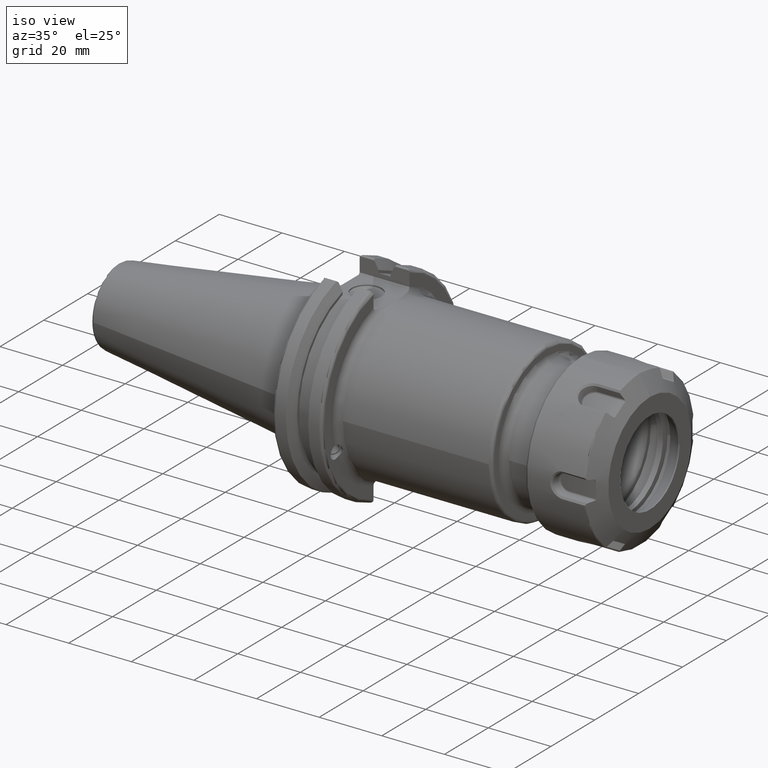
[diagram: clean part render]
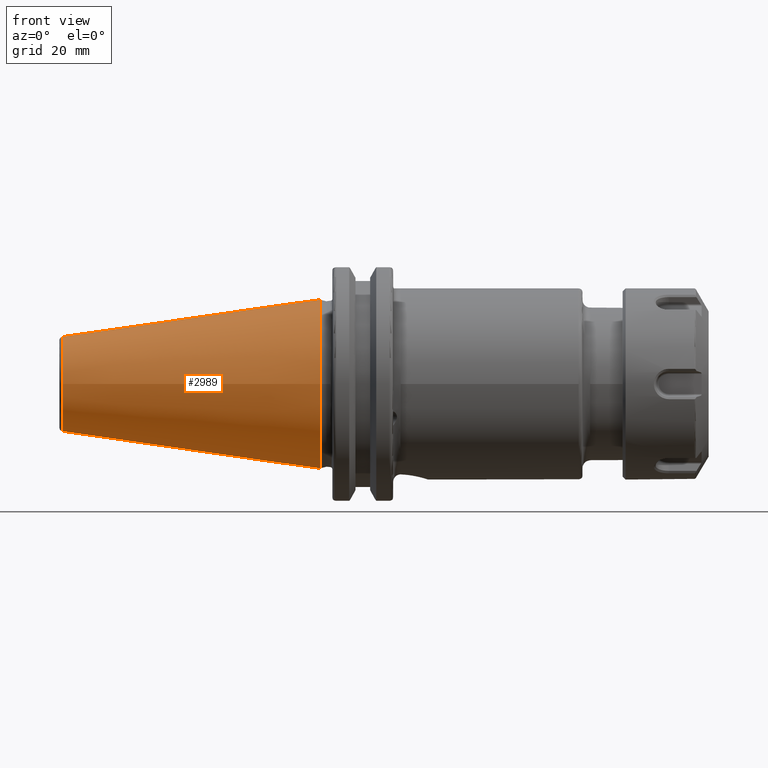
[diagram: tour spotlight — one face highlighted and labeled with its STEP entity id]
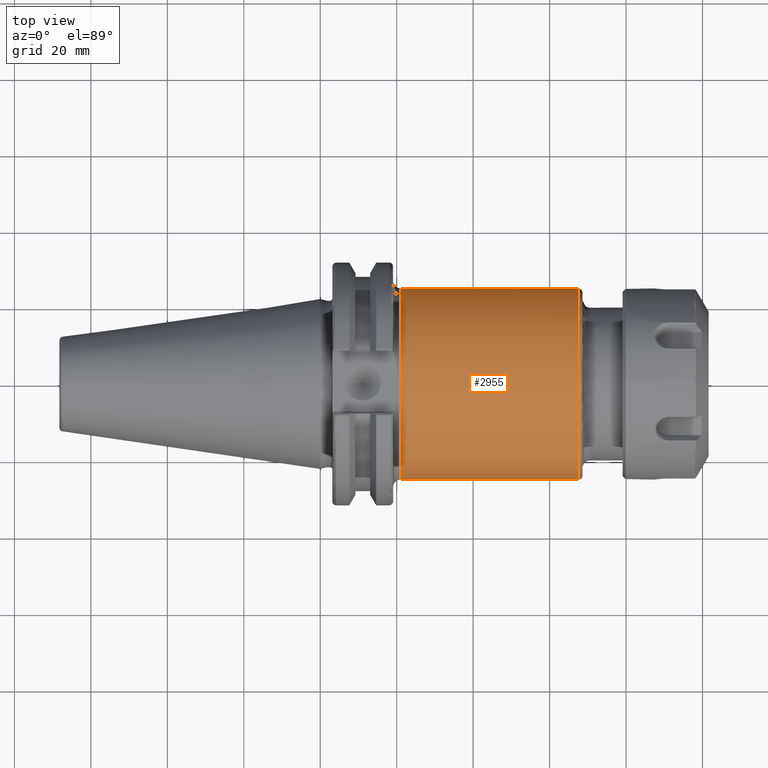
[diagram: tour spotlight — one face highlighted and labeled with its STEP entity id]
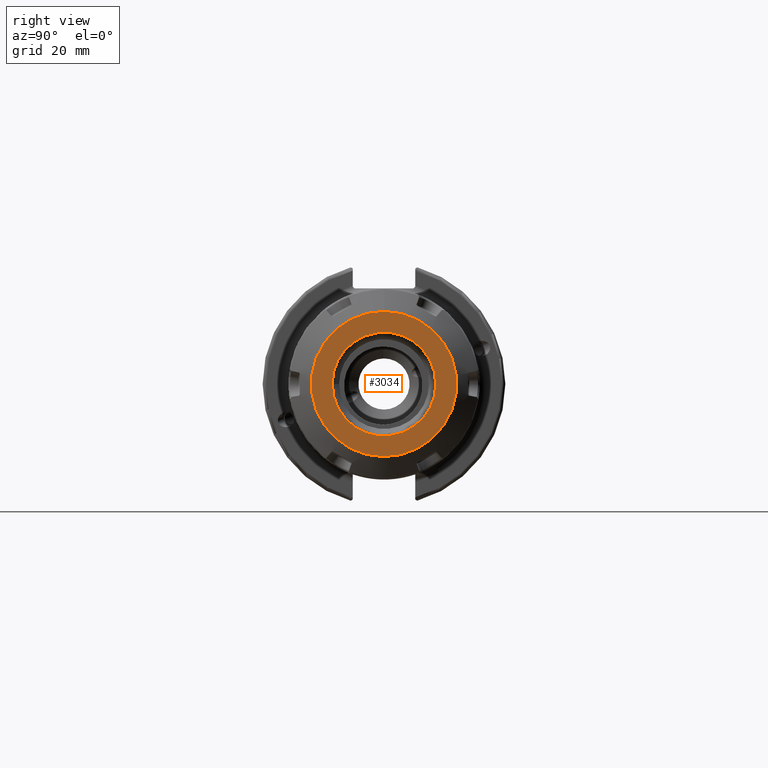
[diagram: tour spotlight — one face highlighted and labeled with its STEP entity id]
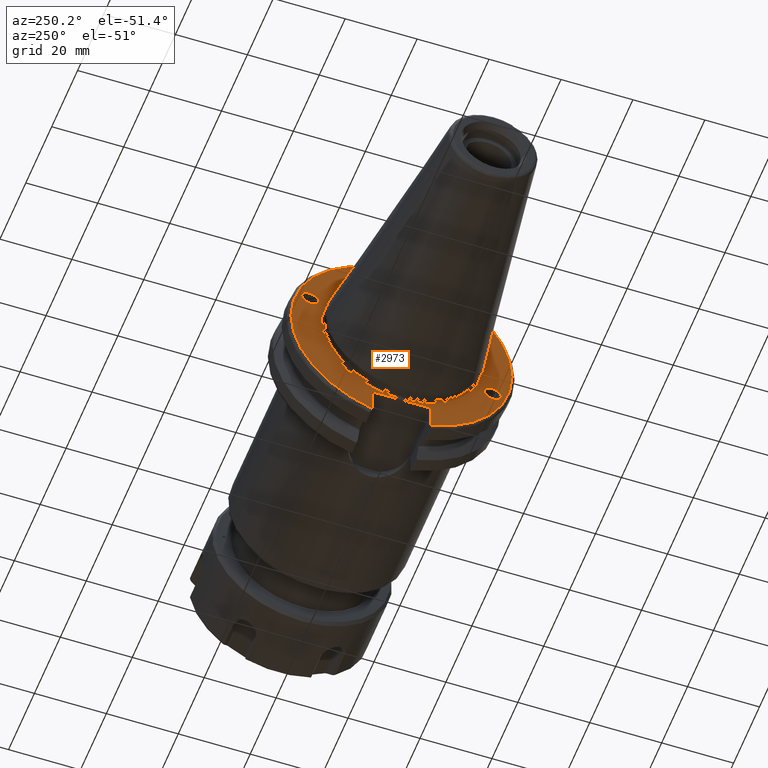
[diagram: tour spotlight — one face highlighted and labeled with its STEP entity id]
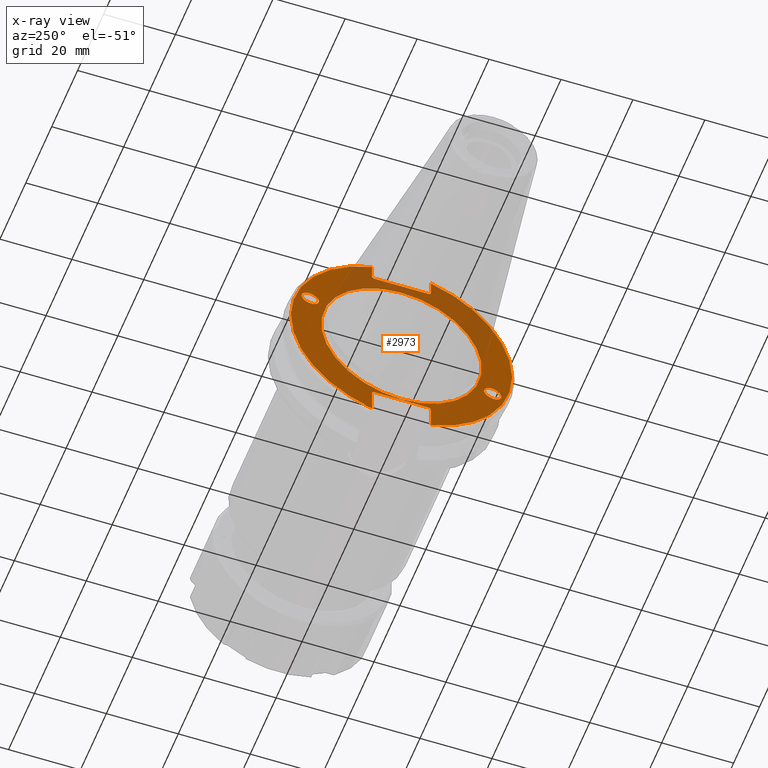
[diagram: x-ray of the same camera — body ghosted, this tour face saturated]
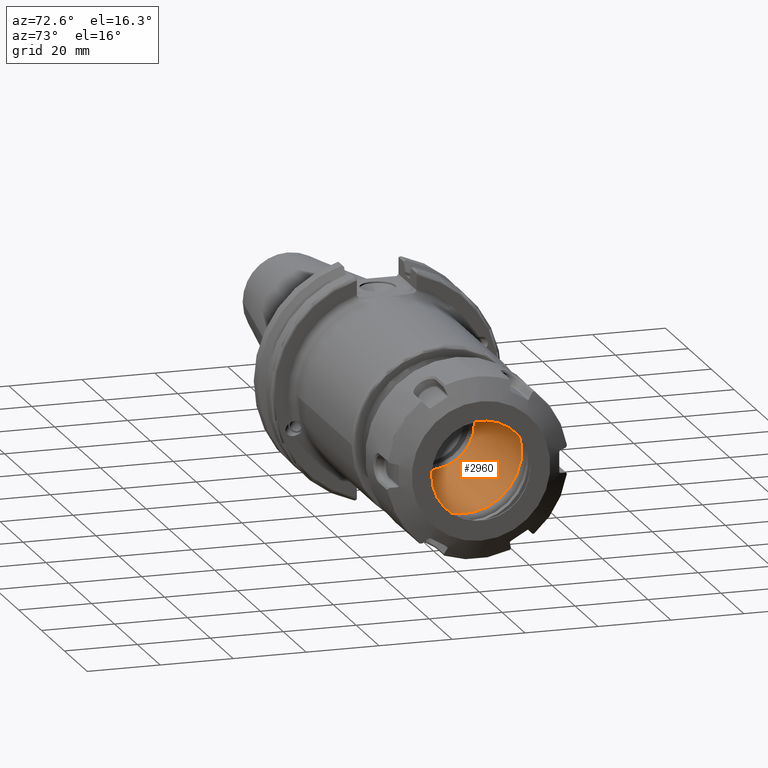
[diagram: tour spotlight — one face highlighted and labeled with its STEP entity id]
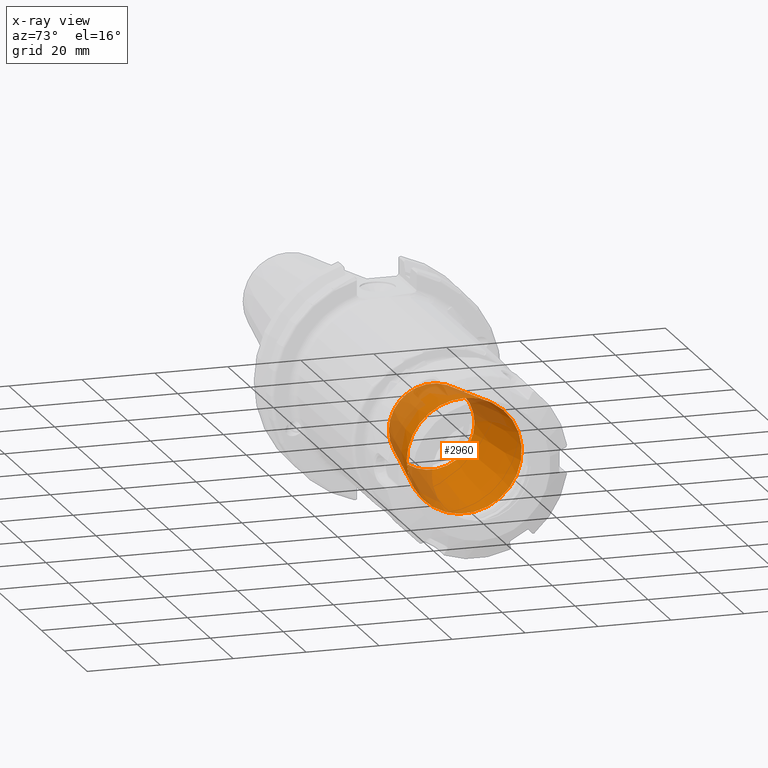
[diagram: x-ray of the same camera — body ghosted, this tour face saturated]
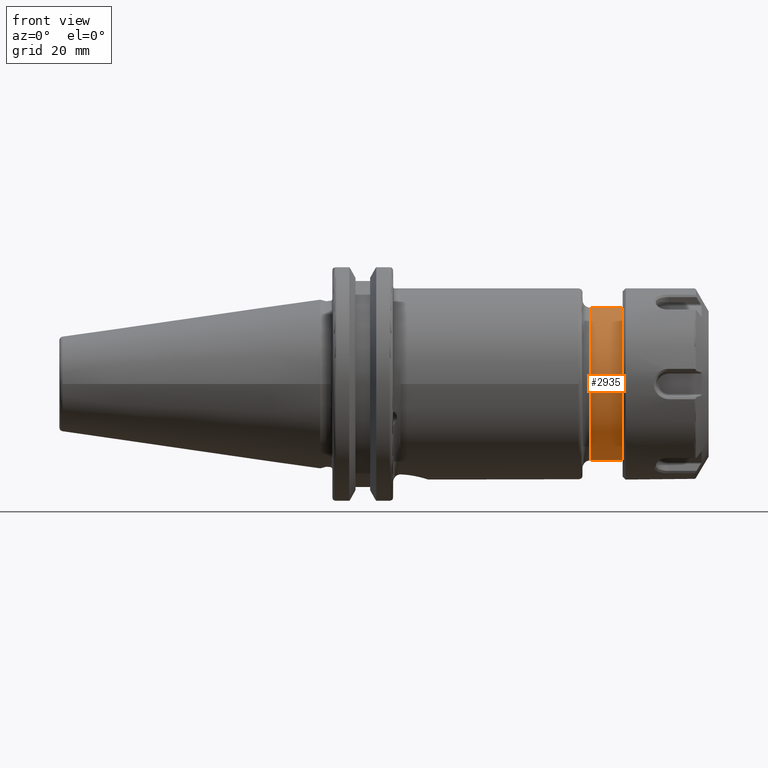
[diagram: tour spotlight — one face highlighted and labeled with its STEP entity id]
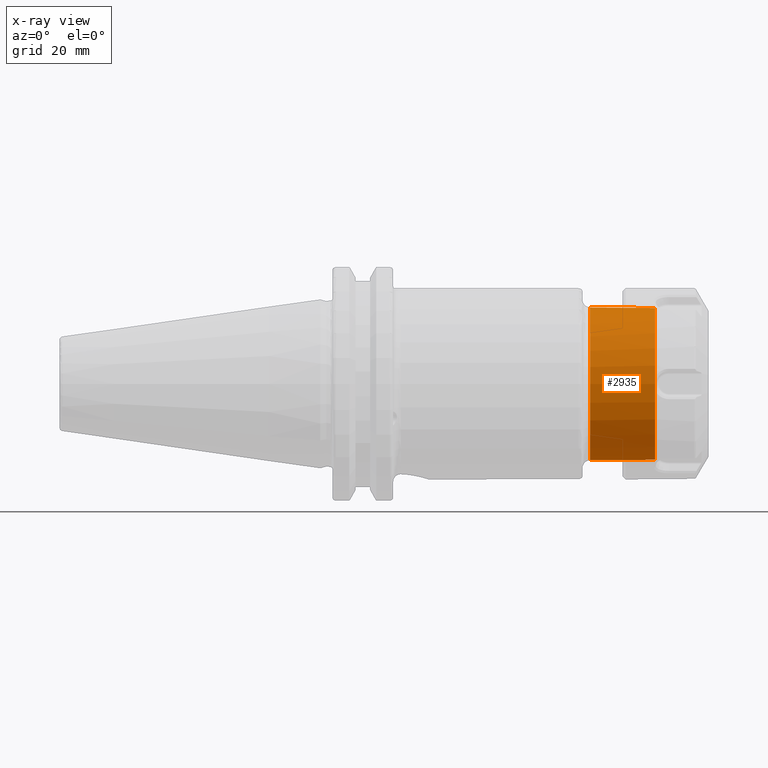
[diagram: x-ray of the same camera — body ghosted, this tour face saturated]
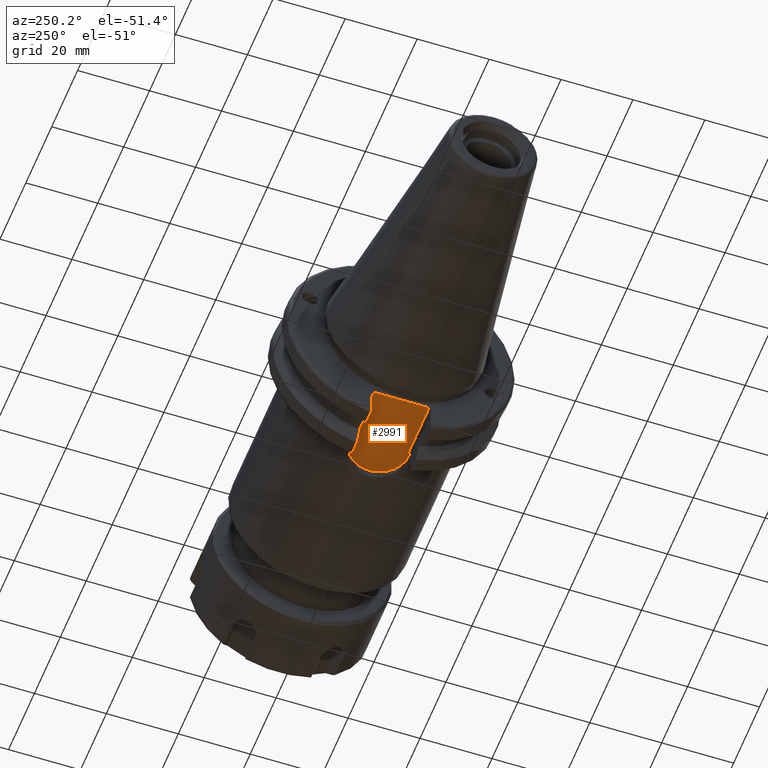
[diagram: tour spotlight — one face highlighted and labeled with its STEP entity id]
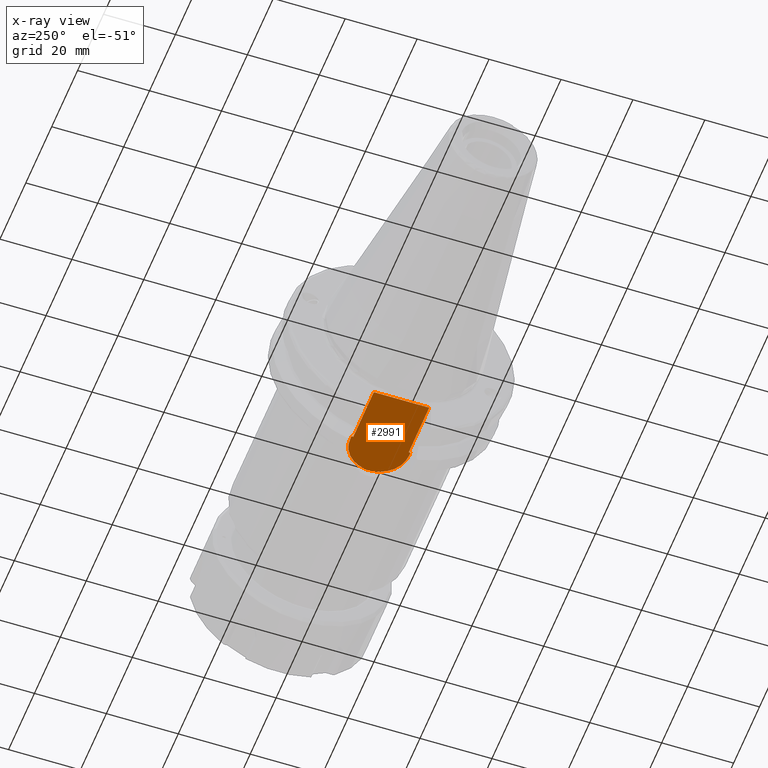
[diagram: x-ray of the same camera — body ghosted, this tour face saturated]
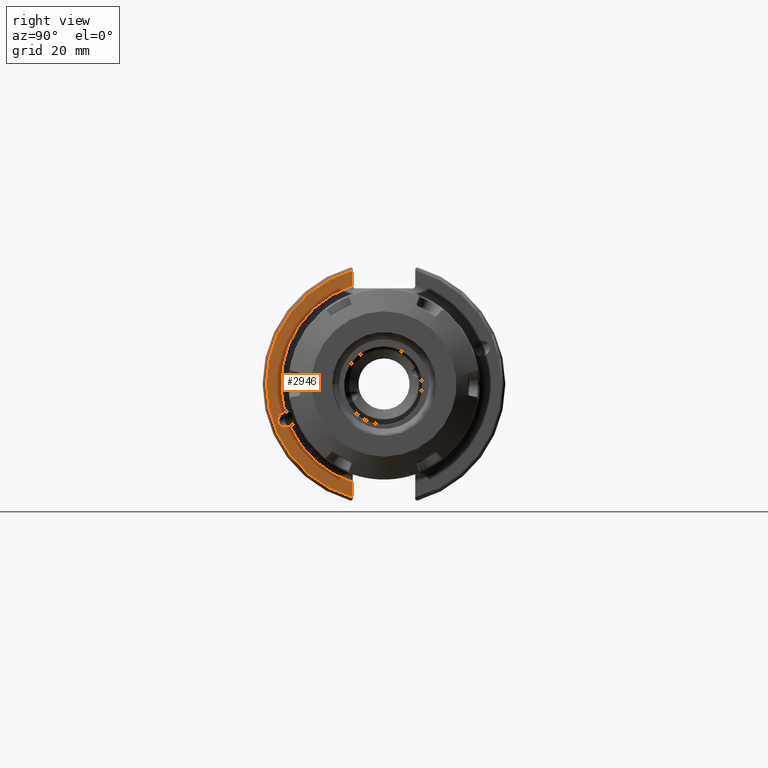
[diagram: tour spotlight — one face highlighted and labeled with its STEP entity id]
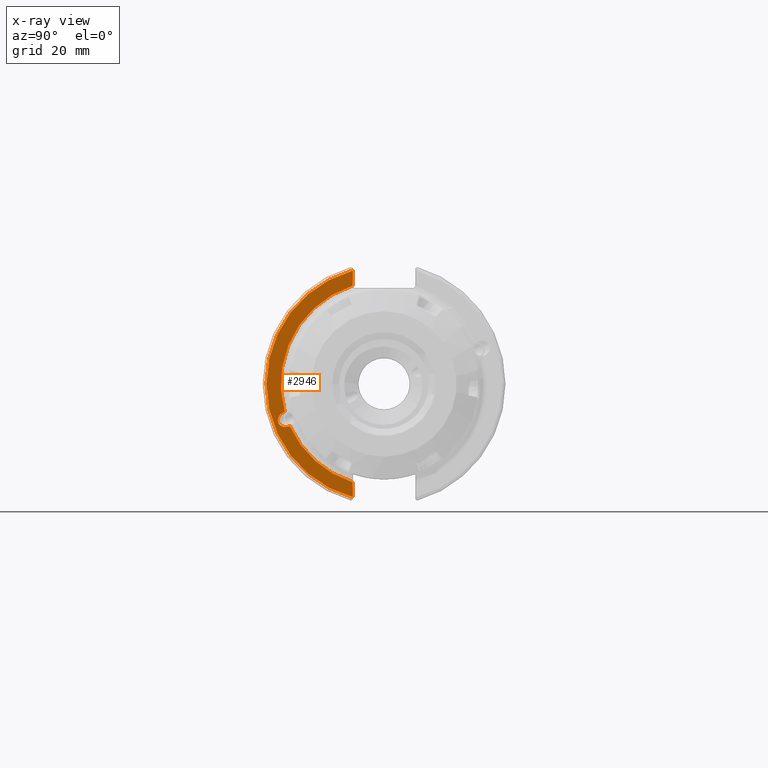
[diagram: x-ray of the same camera — body ghosted, this tour face saturated]
A machine part: a face-by-face anatomy tour. The part has 171 B-rep faces; the first image is the clean iso view, then the 8 largest visible faces are spotlighted one at a time (largest first), each with its STEP entity span.

Face 1 — front view, entity #2989. In plain terms, the highlighted conical surface has half-angle 8.297 deg.
Definition (entity closure, byte-faithful):
#481=FACE_OUTER_BOUND('',#667,.T.);
#667=EDGE_LOOP('',(#2348,#2349,#2350,#2351,#2352));
#859=LINE('',#5167,#1032);
#1032=VECTOR('',#3847,17.2484375);
#1190=CIRCLE('',#3308,12.3966635780937);
#1191=CIRCLE('',#3309,12.3966635780937);
#1195=CIRCLE('',#3315,22.225);
#1409=VERTEX_POINT('',#5154);
#1410=VERTEX_POINT('',#5155);
#1413=VERTEX_POINT('',#5165);
#1754=EDGE_CURVE('',#1409,#1410,#1190,.T.);
#1755=EDGE_CURVE('',#1410,#1409,#1191,.T.);
#1759=EDGE_CURVE('',#1413,#1413,#1195,.T.);
#1760=EDGE_CURVE('',#1413,#1410,#859,.T.);
#2348=ORIENTED_EDGE('',*,*,#1759,.F.);
#2349=ORIENTED_EDGE('',*,*,#1760,.T.);
#2350=ORIENTED_EDGE('',*,*,#1754,.F.);
#2351=ORIENTED_EDGE('',*,*,#1755,.F.);
#2352=ORIENTED_EDGE('',*,*,#1760,.F.);
#2914=CONICAL_SURFACE('',#3314,17.2484375,0.144812498238939);
#2989=ADVANCED_FACE('',(#481),#2914,.T.);
#3308=AXIS2_PLACEMENT_3D('',#5156,#3831,#3832);
#3309=AXIS2_PLACEMENT_3D('',#5157,#3833,#3834);
#3314=AXIS2_PLACEMENT_3D('',#5164,#3843,#3844);
#3315=AXIS2_PLACEMENT_3D('',#5166,#3845,#3846);
#3831=DIRECTION('center_axis',(-1.,0.,0.));
#3832=DIRECTION('ref_axis',(0.,-1.,3.06161699786838E-17));
#3833=DIRECTION('center_axis',(-1.,0.,0.));
#3834=DIRECTION('ref_axis',(0.,-1.,3.06161699786838E-17));
#3843=DIRECTION('center_axis',(1.,0.,0.));
#3844=DIRECTION('ref_axis',(0.,1.,0.));
#3845=DIRECTION('center_axis',(1.,0.,0.));
#3846=DIRECTION('ref_axis',(0.,0.,-1.));
#3847=DIRECTION('',(-0.989532981063282,0.144306893071729,1.76724974695192E-17));
#5154=CARTESIAN_POINT('',(-67.3943068930717,-1.5181534371019E-15,12.3966635780937));
#5155=CARTESIAN_POINT('',(-67.3943068930718,-12.3966635780937,-1.5181534371019E-15));
#5156=CARTESIAN_POINT('Origin',(-67.3943068930717,0.,-1.89769179637738E-15));
#5157=CARTESIAN_POINT('Origin',(-67.3943068930717,0.,-1.89769179637738E-15));
#5164=CARTESIAN_POINT('Origin',(-34.125,0.,0.));
#5165=CARTESIAN_POINT('',(0.,-22.225,-2.72177751110499E-15));
#5166=CARTESIAN_POINT('Origin',(0.,0.,0.));
#5167=CARTESIAN_POINT('',(-34.125,-17.2484375,-2.11232437746682E-15));

Face 2 — top view, entity #2955. In plain terms, the highlighted cylindrical surface (bore or boss wall) has radius 25 mm, axis along (1, 0, 0).
Definition (entity closure, byte-faithful):
#183=B_SPLINE_CURVE_WITH_KNOTS('',3,(#4777,#4778,#4779,#4780,#4781,#4782,
#4783,#4784,#4785,#4786,#4787,#4788,#4789,#4790,#4791,#4792,#4793,#4794),
 .UNSPECIFIED.,.F.,.F.,(4,2,2,2,2,2,2,2,4),(-2.38993086283236,-2.17736559594014,
-1.86623710445985,-1.55524491282947,-1.24425272119909,-0.933255605310928,
-0.622258489422768,-0.311129244711384,-0.0985633456539269),
 .UNSPECIFIED.);
#297=CYLINDRICAL_SURFACE('',#3246,25.);
#447=FACE_OUTER_BOUND('',#624,.T.);
#624=EDGE_LOOP('',(#2144,#2145,#2146,#2147,#2148,#2149,#2150,#2151));
#809=LINE('',#4775,#982);
#982=VECTOR('',#3661,25.);
#1160=CIRCLE('',#3244,25.);
#1161=CIRCLE('',#3245,25.);
#1162=CIRCLE('',#3247,25.);
#1163=CIRCLE('',#3248,25.);
#1164=CIRCLE('',#3249,25.);
#1325=VERTEX_POINT('',#4740);
#1326=VERTEX_POINT('',#4749);
#1327=VERTEX_POINT('',#4751);
#1330=VERTEX_POINT('',#4772);
#1331=VERTEX_POINT('',#4773);
#1332=VERTEX_POINT('',#4776);
#1638=EDGE_CURVE('',#1325,#1326,#1160,.T.);
#1639=EDGE_CURVE('',#1326,#1327,#1161,.T.);
#1643=EDGE_CURVE('',#1330,#1331,#1162,.T.);
#1644=EDGE_CURVE('',#1330,#1326,#809,.T.);
#1645=EDGE_CURVE('',#1325,#1332,#183,.T.);
#1646=EDGE_CURVE('',#1327,#1332,#1163,.T.);
#1647=EDGE_CURVE('',#1331,#1330,#1164,.T.);
#2144=ORIENTED_EDGE('',*,*,#1643,.F.);
#2145=ORIENTED_EDGE('',*,*,#1644,.T.);
#2146=ORIENTED_EDGE('',*,*,#1638,.F.);
#2147=ORIENTED_EDGE('',*,*,#1645,.T.);
#2148=ORIENTED_EDGE('',*,*,#1646,.F.);
#2149=ORIENTED_EDGE('',*,*,#1639,.F.);
#2150=ORIENTED_EDGE('',*,*,#1644,.F.);
#2151=ORIENTED_EDGE('',*,*,#1647,.F.);
#2955=ADVANCED_FACE('',(#447),#297,.T.);
#3244=AXIS2_PLACEMENT_3D('',#4750,#3653,#3654);
#3245=AXIS2_PLACEMENT_3D('',#4752,#3655,#3656);
#3246=AXIS2_PLACEMENT_3D('',#4771,#3657,#3658);
#3247=AXIS2_PLACEMENT_3D('',#4774,#3659,#3660);
#3248=AXIS2_PLACEMENT_3D('',#4795,#3662,#3663);
#3249=AXIS2_PLACEMENT_3D('',#4796,#3664,#3665);
#3653=DIRECTION('center_axis',(-1.,0.,0.));
#3654=DIRECTION('ref_axis',(0.,-0.986107628833363,0.166107628833363));
#3655=DIRECTION('center_axis',(-1.,0.,0.));
#3656=DIRECTION('ref_axis',(0.,-0.986107628833363,0.166107628833363));
#3657=DIRECTION('center_axis',(1.,0.,0.));
#3658=DIRECTION('ref_axis',(0.,1.,0.));
#3659=DIRECTION('center_axis',(1.,0.,0.));
#3660=DIRECTION('ref_axis',(0.,-1.,1.83697019872103E-16));
#3661=DIRECTION('',(-1.,0.,0.));
#3662=DIRECTION('center_axis',(-1.,0.,0.));
#3663=DIRECTION('ref_axis',(0.,0.986107628833363,0.166107628833363));
#3664=DIRECTION('center_axis',(1.,0.,0.));
#3665=DIRECTION('ref_axis',(0.,-1.,1.83697019872103E-16));
#4740=CARTESIAN_POINT('',(21.0500000001268,-8.12873199235377,-23.641567549477));
#4749=CARTESIAN_POINT('',(21.05,-25.,-3.06161699786838E-15));
#4750=CARTESIAN_POINT('Origin',(21.05,0.,0.));
#4751=CARTESIAN_POINT('',(21.05,0.,25.));
#4752=CARTESIAN_POINT('Origin',(21.05,0.,0.));
#4771=CARTESIAN_POINT('Origin',(43.825,0.,0.));
#4772=CARTESIAN_POINT('',(67.6,-25.,-3.06161699786838E-15));
#4773=CARTESIAN_POINT('',(67.6,-3.06161699786838E-15,25.));
#4774=CARTESIAN_POINT('Origin',(67.6,0.,0.));
#4775=CARTESIAN_POINT('',(43.825,-25.,-3.06161699786838E-15));
#4776=CARTESIAN_POINT('',(21.0500000001268,8.13173199235377,-23.6405358400466));
#4777=CARTESIAN_POINT('Ctrl Pts',(21.0500000001289,-8.12873199236911,-23.6415675494717));
#4778=CARTESIAN_POINT('Ctrl Pts',(21.7754733470999,-8.03950042459276,-23.6722482350141));
#4779=CARTESIAN_POINT('Ctrl Pts',(22.5068276749512,-7.8483890563984,-23.7380083478526));
#4780=CARTESIAN_POINT('Ctrl Pts',(24.2031978346944,-7.14293709915909,-23.9618820169539));
#4781=CARTESIAN_POINT('Ctrl Pts',(25.1191193113656,-6.51391393475316,-24.1479095316697));
#4782=CARTESIAN_POINT('Ctrl Pts',(26.5651171097247,-5.06791043771852,-24.4922111950644));
#4783=CARTESIAN_POINT('Ctrl Pts',(27.1943756078199,-4.15186658108966,-24.6737611684479));
#4784=CARTESIAN_POINT('Ctrl Pts',(28.0327704710856,-2.13577253647661,-24.9293193238688));
#4785=CARTESIAN_POINT('Ctrl Pts',(28.2415,-1.03514063690198,-25.0000621534383));
#4786=CARTESIAN_POINT('Ctrl Pts',(28.2415,1.03815705109455,-24.9999377555768));
#4787=CARTESIAN_POINT('Ctrl Pts',(28.0327645465553,2.13879660422026,-24.9290607832362));
#4788=CARTESIAN_POINT('Ctrl Pts',(27.1943598035675,4.15489476445475,-24.6732521563422));
#4789=CARTESIAN_POINT('Ctrl Pts',(26.5650976568378,5.0709355891377,-24.4915856331522));
#4790=CARTESIAN_POINT('Ctrl Pts',(25.1191027990447,6.5169247460824,-24.1470974591263));
#4791=CARTESIAN_POINT('Ctrl Pts',(24.2031889989331,7.14594139368136,-23.9609865158875));
#4792=CARTESIAN_POINT('Ctrl Pts',(22.5068266546161,7.85138905706789,-23.7370163912265));
#4793=CARTESIAN_POINT('Ctrl Pts',(21.7754737551934,8.04250037439819,-23.6712292053481));
#4794=CARTESIAN_POINT('Ctrl Pts',(21.0500000001289,8.13173199236911,-23.6405358400414));
#4795=CARTESIAN_POINT('Origin',(21.05,0.,0.));
#4796=CARTESIAN_POINT('Origin',(67.6,0.,0.));

Face 3 — right view, entity #3034. In plain terms, the highlighted planar face has unit normal (1, 0, 0).
Definition (entity closure, byte-faithful):
#353=FACE_BOUND('',#720,.T.);
#394=PLANE('',#3394);
#526=FACE_OUTER_BOUND('',#719,.T.);
#719=EDGE_LOOP('',(#2545));
#720=EDGE_LOOP('',(#2546));
#1228=CIRCLE('',#3393,13.55);
#1229=CIRCLE('',#3395,19.);
#1446=VERTEX_POINT('',#5322);
#1447=VERTEX_POINT('',#5326);
#1827=EDGE_CURVE('',#1446,#1446,#1228,.T.);
#1828=EDGE_CURVE('',#1447,#1447,#1229,.T.);
#2545=ORIENTED_EDGE('',*,*,#1828,.T.);
#2546=ORIENTED_EDGE('',*,*,#1827,.F.);
#3034=ADVANCED_FACE('',(#526,#353),#394,.T.);
#3393=AXIS2_PLACEMENT_3D('',#5324,#4030,#4031);
#3394=AXIS2_PLACEMENT_3D('',#5325,#4032,#4033);
#3395=AXIS2_PLACEMENT_3D('',#5327,#4034,#4035);
#4030=DIRECTION('center_axis',(1.,0.,0.));
#4031=DIRECTION('ref_axis',(0.,-1.,0.));
#4032=DIRECTION('center_axis',(1.,0.,0.));
#4033=DIRECTION('ref_axis',(0.,0.,-1.));
#4034=DIRECTION('center_axis',(1.,0.,0.));
#4035=DIRECTION('ref_axis',(0.,0.,1.));
#5322=CARTESIAN_POINT('',(11.25,13.55,1.65939641284466E-15));
#5324=CARTESIAN_POINT('Origin',(11.25,0.,0.));
#5325=CARTESIAN_POINT('Origin',(11.25,0.,0.));
#5326=CARTESIAN_POINT('',(11.25,0.,19.));
#5327=CARTESIAN_POINT('Origin',(11.25,0.,0.));

Face 4 — auxiliary view, entity #2973. An x-ray twin of the same camera follows (body ghosted, this face saturated) — the face is partly hidden behind the body. In plain terms, the highlighted planar face has unit normal (-1, 0, 0).
Definition (entity closure, byte-faithful):
#274=ELLIPSE('',#3211,2.44154917752292,2.00000000000001);
#284=ELLIPSE('',#3279,2.44154917752292,2.00000000000001);
#342=FACE_BOUND('',#648,.T.);
#343=FACE_BOUND('',#649,.T.);
#344=FACE_BOUND('',#650,.T.);
#365=PLANE('',#3285);
#465=FACE_OUTER_BOUND('',#647,.T.);
#647=EDGE_LOOP('',(#2232,#2233,#2234,#2235,#2236,#2237,#2238,#2239,#2240,
#2241,#2242,#2243));
#648=EDGE_LOOP('',(#2244));
#649=EDGE_LOOP('',(#2245));
#650=EDGE_LOOP('',(#2246));
#824=LINE('',#4908,#997);
#825=LINE('',#4910,#998);
#826=LINE('',#4912,#999);
#827=LINE('',#4914,#1000);
#828=LINE('',#4916,#1001);
#829=LINE('',#4920,#1002);
#830=LINE('',#4922,#1003);
#831=LINE('',#4924,#1004);
#832=LINE('',#4926,#1005);
#833=LINE('',#4927,#1006);
#997=VECTOR('',#3754,10.);
#998=VECTOR('',#3755,10.);
#999=VECTOR('',#3756,10.);
#1000=VECTOR('',#3757,10.);
#1001=VECTOR('',#3758,10.);
#1002=VECTOR('',#3761,10.);
#1003=VECTOR('',#3762,10.);
#1004=VECTOR('',#3763,10.);
#1005=VECTOR('',#3764,10.);
#1006=VECTOR('',#3765,10.);
#1180=CIRCLE('',#3283,22.3);
#1182=CIRCLE('',#3286,30.75);
#1183=CIRCLE('',#3287,30.75);
#1294=VERTEX_POINT('',#4505);
#1354=VERTEX_POINT('',#4892);
#1357=VERTEX_POINT('',#4899);
#1358=VERTEX_POINT('',#4904);
#1359=VERTEX_POINT('',#4905);
#1360=VERTEX_POINT('',#4907);
#1361=VERTEX_POINT('',#4909);
#1362=VERTEX_POINT('',#4911);
#1363=VERTEX_POINT('',#4913);
#1364=VERTEX_POINT('',#4915);
#1365=VERTEX_POINT('',#4917);
#1366=VERTEX_POINT('',#4919);
#1367=VERTEX_POINT('',#4921);
#1368=VERTEX_POINT('',#4923);
#1369=VERTEX_POINT('',#4925);
#1594=EDGE_CURVE('',#1294,#1294,#274,.T.);
#1680=EDGE_CURVE('',#1354,#1354,#284,.T.);
#1683=EDGE_CURVE('',#1357,#1357,#1180,.T.);
#1685=EDGE_CURVE('',#1358,#1359,#1182,.T.);
#1686=EDGE_CURVE('',#1358,#1360,#824,.T.);
#1687=EDGE_CURVE('',#1361,#1360,#825,.T.);
#1688=EDGE_CURVE('',#1361,#1362,#826,.T.);
#1689=EDGE_CURVE('',#1363,#1362,#827,.T.);
#1690=EDGE_CURVE('',#1363,#1364,#828,.T.);
#1691=EDGE_CURVE('',#1365,#1364,#1183,.T.);
#1692=EDGE_CURVE('',#1365,#1366,#829,.T.);
#1693=EDGE_CURVE('',#1367,#1366,#830,.T.);
#1694=EDGE_CURVE('',#1367,#1368,#831,.T.);
#1695=EDGE_CURVE('',#1369,#1368,#832,.T.);
#1696=EDGE_CURVE('',#1369,#1359,#833,.T.);
#2232=ORIENTED_EDGE('',*,*,#1685,.F.);
#2233=ORIENTED_EDGE('',*,*,#1686,.T.);
#2234=ORIENTED_EDGE('',*,*,#1687,.F.);
#2235=ORIENTED_EDGE('',*,*,#1688,.T.);
#2236=ORIENTED_EDGE('',*,*,#1689,.F.);
#2237=ORIENTED_EDGE('',*,*,#1690,.T.);
#2238=ORIENTED_EDGE('',*,*,#1691,.F.);
#2239=ORIENTED_EDGE('',*,*,#1692,.T.);
#2240=ORIENTED_EDGE('',*,*,#1693,.F.);
#2241=ORIENTED_EDGE('',*,*,#1694,.T.);
#2242=ORIENTED_EDGE('',*,*,#1695,.F.);
#2243=ORIENTED_EDGE('',*,*,#1696,.T.);
#2244=ORIENTED_EDGE('',*,*,#1594,.T.);
#2245=ORIENTED_EDGE('',*,*,#1680,.T.);
#2246=ORIENTED_EDGE('',*,*,#1683,.F.);
#2973=ADVANCED_FACE('',(#465,#342,#343,#344),#365,.T.);
#3211=AXIS2_PLACEMENT_3D('',#4507,#3577,#3578);
#3279=AXIS2_PLACEMENT_3D('',#4894,#3738,#3739);
#3283=AXIS2_PLACEMENT_3D('',#4901,#3746,#3747);
#3285=AXIS2_PLACEMENT_3D('',#4903,#3750,#3751);
#3286=AXIS2_PLACEMENT_3D('',#4906,#3752,#3753);
#3287=AXIS2_PLACEMENT_3D('',#4918,#3759,#3760);
#3577=DIRECTION('center_axis',(1.,0.,0.));
#3578=DIRECTION('ref_axis',(5.68400912649E-17,-0.939692620785909,-0.342020143325667));
#3738=DIRECTION('center_axis',(1.,0.,0.));
#3739=DIRECTION('ref_axis',(5.68400912649E-17,0.939692620785909,0.342020143325667));
#3746=DIRECTION('center_axis',(-1.,0.,0.));
#3747=DIRECTION('ref_axis',(0.,-1.,1.83697019872103E-16));
#3750=DIRECTION('center_axis',(-1.,0.,0.));
#3751=DIRECTION('ref_axis',(0.,0.,1.));
#3752=DIRECTION('center_axis',(1.,0.,0.));
#3753=DIRECTION('ref_axis',(0.,-1.,1.60812264967664E-16));
#3754=DIRECTION('',(0.,0.,-1.));
#3755=DIRECTION('',(0.,-0.70710678118655,0.707106781186545));
#3756=DIRECTION('',(0.,1.,0.));
#3757=DIRECTION('',(0.,-0.707106781186549,-0.707106781186546));
#3758=DIRECTION('',(0.,0.,1.));
#3759=DIRECTION('center_axis',(1.,0.,0.));
#3760=DIRECTION('ref_axis',(0.,1.,1.60812264967664E-16));
#3761=DIRECTION('',(0.,0.,1.));
#3762=DIRECTION('',(0.,0.707106781186549,-0.707106781186546));
#3763=DIRECTION('',(0.,-1.,0.));
#3764=DIRECTION('',(0.,0.707106781186549,0.707106781186546));
#3765=DIRECTION('',(0.,0.,-1.));
#4505=CARTESIAN_POINT('',(3.175,-23.0773950158153,-8.39948487016));
#4507=CARTESIAN_POINT('Origin',(3.175,-25.3717007612195,-9.23454386979305));
#4892=CARTESIAN_POINT('',(3.175,23.0773950158153,8.39948487016));
#4894=CARTESIAN_POINT('Origin',(3.175,25.3717007612195,9.23454386979306));
#4899=CARTESIAN_POINT('',(3.175,-2.7309623620986E-15,22.3));
#4901=CARTESIAN_POINT('Origin',(3.175,0.,0.));
#4903=CARTESIAN_POINT('Origin',(3.175,31.75,0.));
#4904=CARTESIAN_POINT('',(3.175,-8.18999999999999,29.6392712461019));
#4905=CARTESIAN_POINT('',(3.175,-8.19,-29.6392712461019));
#4906=CARTESIAN_POINT('Origin',(3.175,0.,0.));
#4907=CARTESIAN_POINT('',(3.175,-8.18999999999999,25.5));
#4908=CARTESIAN_POINT('',(3.175,-8.18999999999999,12.5));
#4909=CARTESIAN_POINT('',(3.175,-7.68999999999999,25.));
#4910=CARTESIAN_POINT('',(3.175,8.29500000000007,9.01500000000004));
#4911=CARTESIAN_POINT('',(3.175,7.69,25.));
#4912=CARTESIAN_POINT('',(3.175,15.875,25.));
#4913=CARTESIAN_POINT('',(3.175,8.19,25.5));
#4914=CARTESIAN_POINT('',(3.175,7.58000000000002,24.89));
#4915=CARTESIAN_POINT('',(3.175,8.19,29.6392712461019));
#4916=CARTESIAN_POINT('',(3.175,8.19,12.5));
#4917=CARTESIAN_POINT('',(3.175,8.18999999999999,-29.6392712461019));
#4918=CARTESIAN_POINT('Origin',(3.175,0.,0.));
#4919=CARTESIAN_POINT('',(3.175,8.18999999999999,-23.1));
#4920=CARTESIAN_POINT('',(3.175,8.18999999999999,-11.3));
#4921=CARTESIAN_POINT('',(3.175,7.69,-22.6));
#4922=CARTESIAN_POINT('',(3.175,8.18000000000002,-23.09));
#4923=CARTESIAN_POINT('',(3.175,-7.69,-22.6));
#4924=CARTESIAN_POINT('',(3.175,15.875,-22.6));
#4925=CARTESIAN_POINT('',(3.175,-8.19,-23.1));
#4926=CARTESIAN_POINT('',(3.175,7.69500000000004,-7.21500000000002));
#4927=CARTESIAN_POINT('',(3.175,-8.19,-11.3));

Face 5 — auxiliary view, entity #2960. An x-ray twin of the same camera follows (body ghosted, this face saturated) — the face is partly hidden behind the body. In plain terms, the highlighted conical surface has half-angle 8 deg.
Definition (entity closure, byte-faithful):
#452=FACE_OUTER_BOUND('',#630,.T.);
#630=EDGE_LOOP('',(#2174,#2175,#2176,#2177,#2178));
#810=LINE('',#4848,#983);
#983=VECTOR('',#3688,13.875);
#1168=CIRCLE('',#3257,15.7580373381493);
#1169=CIRCLE('',#3258,15.7580373381493);
#1171=CIRCLE('',#3261,11.75);
#1338=VERTEX_POINT('',#4841);
#1339=VERTEX_POINT('',#4842);
#1340=VERTEX_POINT('',#4847);
#1656=EDGE_CURVE('',#1338,#1339,#1168,.T.);
#1657=EDGE_CURVE('',#1339,#1338,#1169,.T.);
#1659=EDGE_CURVE('',#1339,#1340,#810,.T.);
#1660=EDGE_CURVE('',#1340,#1340,#1171,.T.);
#2174=ORIENTED_EDGE('',*,*,#1656,.F.);
#2175=ORIENTED_EDGE('',*,*,#1657,.F.);
#2176=ORIENTED_EDGE('',*,*,#1659,.T.);
#2177=ORIENTED_EDGE('',*,*,#1660,.F.);
#2178=ORIENTED_EDGE('',*,*,#1659,.F.);
#2912=CONICAL_SURFACE('',#3260,13.875,0.139626340159547);
#2960=ADVANCED_FACE('',(#452),#2912,.F.);
#3257=AXIS2_PLACEMENT_3D('',#4843,#3680,#3681);
#3258=AXIS2_PLACEMENT_3D('',#4844,#3682,#3683);
#3260=AXIS2_PLACEMENT_3D('',#4846,#3686,#3687);
#3261=AXIS2_PLACEMENT_3D('',#4849,#3689,#3690);
#3680=DIRECTION('center_axis',(-1.,0.,0.));
#3681=DIRECTION('ref_axis',(0.,-1.,3.06161699786838E-17));
#3682=DIRECTION('center_axis',(-1.,0.,0.));
#3683=DIRECTION('ref_axis',(0.,-1.,3.06161699786838E-17));
#3686=DIRECTION('center_axis',(1.,0.,0.));
#3687=DIRECTION('ref_axis',(0.,1.,0.));
#3688=DIRECTION('',(-0.99026806874157,0.139173100960066,1.70437892618156E-17));
#3689=DIRECTION('center_axis',(1.,0.,0.));
#3690=DIRECTION('ref_axis',(0.,0.,-1.));
#4841=CARTESIAN_POINT('',(86.8783462019201,-1.9298029987009E-15,15.7580373381493));
#4842=CARTESIAN_POINT('',(86.8783462019201,-15.7580373381493,-1.9298029987009E-15));
#4843=CARTESIAN_POINT('Origin',(86.8783462019201,0.,-2.41225374837613E-15));
#4844=CARTESIAN_POINT('Origin',(86.8783462019201,0.,-2.41225374837613E-15));
#4846=CARTESIAN_POINT('Origin',(73.4798393399336,0.,0.));
#4847=CARTESIAN_POINT('',(58.3596786798672,-11.75,-1.43895998899814E-15));
#4848=CARTESIAN_POINT('',(73.4798393399336,-13.875,-1.69919743381695E-15));
#4849=CARTESIAN_POINT('Origin',(58.3596786798672,0.,0.));

Face 6 — front view, entity #2935. An x-ray twin of the same camera follows (body ghosted, this face saturated) — the face is partly hidden behind the body. In plain terms, the highlighted cylindrical surface (bore or boss wall) has radius 20 mm, axis along (1, 0, 0).
Definition (entity closure, byte-faithful):
#285=CYLINDRICAL_SURFACE('',#3185,20.);
#427=FACE_OUTER_BOUND('',#599,.T.);
#599=EDGE_LOOP('',(#2016,#2017,#2018,#2019,#2020,#2021));
#791=LINE('',#4334,#964);
#964=VECTOR('',#3519,20.);
#1137=CIRCLE('',#3181,20.);
#1138=CIRCLE('',#3182,20.);
#1140=CIRCLE('',#3186,20.);
#1141=CIRCLE('',#3187,20.);
#1270=VERTEX_POINT('',#4324);
#1271=VERTEX_POINT('',#4326);
#1273=VERTEX_POINT('',#4333);
#1274=VERTEX_POINT('',#4335);
#1561=EDGE_CURVE('',#1270,#1271,#1137,.T.);
#1562=EDGE_CURVE('',#1271,#1270,#1138,.T.);
#1564=EDGE_CURVE('',#1271,#1273,#791,.T.);
#1565=EDGE_CURVE('',#1274,#1273,#1140,.T.);
#1566=EDGE_CURVE('',#1273,#1274,#1141,.T.);
#2016=ORIENTED_EDGE('',*,*,#1561,.F.);
#2017=ORIENTED_EDGE('',*,*,#1562,.F.);
#2018=ORIENTED_EDGE('',*,*,#1564,.T.);
#2019=ORIENTED_EDGE('',*,*,#1565,.F.);
#2020=ORIENTED_EDGE('',*,*,#1566,.F.);
#2021=ORIENTED_EDGE('',*,*,#1564,.F.);
#2935=ADVANCED_FACE('',(#427),#285,.T.);
#3181=AXIS2_PLACEMENT_3D('',#4327,#3509,#3510);
#3182=AXIS2_PLACEMENT_3D('',#4328,#3511,#3512);
#3185=AXIS2_PLACEMENT_3D('',#4332,#3517,#3518);
#3186=AXIS2_PLACEMENT_3D('',#4336,#3520,#3521);
#3187=AXIS2_PLACEMENT_3D('',#4337,#3522,#3523);
#3509=DIRECTION('center_axis',(1.,0.,0.));
#3510=DIRECTION('ref_axis',(0.,-1.,0.));
#3511=DIRECTION('center_axis',(1.,0.,0.));
#3512=DIRECTION('ref_axis',(0.,-1.,0.));
#3517=DIRECTION('center_axis',(1.,0.,0.));
#3518=DIRECTION('ref_axis',(0.,1.,0.));
#3519=DIRECTION('',(-1.,0.,0.));
#3520=DIRECTION('center_axis',(-1.,0.,0.));
#3521=DIRECTION('ref_axis',(0.,-1.,1.83697019872103E-16));
#3522=DIRECTION('center_axis',(-1.,0.,0.));
#3523=DIRECTION('ref_axis',(0.,-1.,1.83697019872103E-16));
#4324=CARTESIAN_POINT('',(87.6,20.,2.44929359829471E-15));
#4326=CARTESIAN_POINT('',(87.6,-20.,-2.44929359829471E-15));
#4327=CARTESIAN_POINT('Origin',(87.6,0.,0.));
#4328=CARTESIAN_POINT('Origin',(87.6,0.,0.));
#4332=CARTESIAN_POINT('Origin',(78.6,0.,0.));
#4333=CARTESIAN_POINT('',(70.6,-20.,-2.44929359829471E-15));
#4334=CARTESIAN_POINT('',(78.6,-20.,-2.44929359829471E-15));
#4335=CARTESIAN_POINT('',(70.6,-2.44929359829471E-15,20.));
#4336=CARTESIAN_POINT('Origin',(70.6,0.,0.));
#4337=CARTESIAN_POINT('Origin',(70.6,0.,0.));

Face 7 — auxiliary view, entity #2991. An x-ray twin of the same camera follows (body ghosted, this face saturated) — the face is partly hidden behind the body. In plain terms, the highlighted planar face has unit normal (0, 0, 1).
Definition (entity closure, byte-faithful):
#375=PLANE('',#3317);
#483=FACE_OUTER_BOUND('',#669,.T.);
#669=EDGE_LOOP('',(#2357,#2358,#2359,#2360,#2361,#2362,#2363,#2364));
#812=LINE('',#4857,#985);
#816=LINE('',#4865,#989);
#831=LINE('',#4924,#1004);
#837=LINE('',#4975,#1010);
#855=LINE('',#5085,#1028);
#860=LINE('',#5169,#1033);
#861=LINE('',#5171,#1034);
#985=VECTOR('',#3698,10.);
#989=VECTOR('',#3704,10.);
#1004=VECTOR('',#3763,10.);
#1010=VECTOR('',#3781,10.);
#1028=VECTOR('',#3807,10.);
#1033=VECTOR('',#3850,10.);
#1034=VECTOR('',#3853,10.);
#1173=CIRCLE('',#3267,8.1915);
#1341=VERTEX_POINT('',#4853);
#1343=VERTEX_POINT('',#4856);
#1345=VERTEX_POINT('',#4861);
#1346=VERTEX_POINT('',#4863);
#1347=VERTEX_POINT('',#4867);
#1348=VERTEX_POINT('',#4869);
#1367=VERTEX_POINT('',#4921);
#1368=VERTEX_POINT('',#4923);
#1663=EDGE_CURVE('',#1343,#1341,#812,.T.);
#1667=EDGE_CURVE('',#1345,#1346,#816,.T.);
#1669=EDGE_CURVE('',#1348,#1347,#1173,.T.);
#1694=EDGE_CURVE('',#1367,#1368,#831,.T.);
#1707=EDGE_CURVE('',#1346,#1348,#837,.T.);
#1739=EDGE_CURVE('',#1347,#1343,#855,.T.);
#1761=EDGE_CURVE('',#1345,#1367,#860,.T.);
#1762=EDGE_CURVE('',#1368,#1341,#861,.T.);
#2357=ORIENTED_EDGE('',*,*,#1761,.F.);
#2358=ORIENTED_EDGE('',*,*,#1667,.T.);
#2359=ORIENTED_EDGE('',*,*,#1707,.T.);
#2360=ORIENTED_EDGE('',*,*,#1669,.T.);
#2361=ORIENTED_EDGE('',*,*,#1739,.T.);
#2362=ORIENTED_EDGE('',*,*,#1663,.T.);
#2363=ORIENTED_EDGE('',*,*,#1762,.F.);
#2364=ORIENTED_EDGE('',*,*,#1694,.F.);
#2991=ADVANCED_FACE('',(#483),#375,.F.);
#3267=AXIS2_PLACEMENT_3D('',#4870,#3708,#3709);
#3317=AXIS2_PLACEMENT_3D('',#5170,#3851,#3852);
#3698=DIRECTION('',(0.,1.,0.));
#3704=DIRECTION('',(0.,1.,0.));
#3708=DIRECTION('center_axis',(0.,0.,-1.));
#3709=DIRECTION('ref_axis',(-0.0270616417533987,0.999633766709394,0.));
#3763=DIRECTION('',(0.,-1.,0.));
#3781=DIRECTION('',(1.,3.33066907387547E-15,0.));
#3807=DIRECTION('',(-1.,0.,0.));
#3850=DIRECTION('',(-1.,-1.31581988103722E-16,0.));
#3851=DIRECTION('center_axis',(0.,0.,1.));
#3852=DIRECTION('ref_axis',(1.,0.,0.));
#3853=DIRECTION('',(1.,0.,0.));
#4853=CARTESIAN_POINT('',(19.05,-7.69,-22.6));
#4856=CARTESIAN_POINT('',(19.05,-8.19,-22.6));
#4857=CARTESIAN_POINT('',(19.05,-8.19,-22.6));
#4861=CARTESIAN_POINT('',(19.05,7.69,-22.6));
#4863=CARTESIAN_POINT('',(19.05,8.19,-22.6));
#4865=CARTESIAN_POINT('',(19.05,-8.19,-22.6));
#4867=CARTESIAN_POINT('',(20.05,-8.19,-22.6));
#4869=CARTESIAN_POINT('',(19.828324561577,8.19,-22.6));
#4870=CARTESIAN_POINT('Origin',(20.05,0.00149999999999983,-22.6));
#4921=CARTESIAN_POINT('',(3.175,7.69,-22.6));
#4923=CARTESIAN_POINT('',(3.175,-7.69,-22.6));
#4924=CARTESIAN_POINT('',(3.175,15.875,-22.6));
#4975=CARTESIAN_POINT('',(19.05,8.19,-22.6));
#5085=CARTESIAN_POINT('',(20.05,-8.19,-22.6));
#5169=CARTESIAN_POINT('',(9.44125,7.69,-22.6));
#5170=CARTESIAN_POINT('Origin',(15.7075,-5.55111512312578E-16,-22.6));
#5171=CARTESIAN_POINT('',(17.87875,-7.69,-22.6));

Face 8 — right view, entity #2946. An x-ray twin of the same camera follows (body ghosted, this face saturated) — the face is partly hidden behind the body. In plain terms, the highlighted planar face has unit normal (1, 0, 0).
Definition (entity closure, byte-faithful):
#273=ELLIPSE('',#3202,2.44154917752291,2.);
#357=PLANE('',#3216);
#438=FACE_OUTER_BOUND('',#613,.T.);
#613=EDGE_LOOP('',(#2080,#2081,#2082,#2083,#2084,#2085));
#800=LINE('',#4583,#973);
#801=LINE('',#4587,#974);
#973=VECTOR('',#3592,10.);
#974=VECTOR('',#3595,10.);
#1150=CIRCLE('',#3217,27.);
#1151=CIRCLE('',#3218,30.75);
#1152=CIRCLE('',#3219,27.);
#1287=VERTEX_POINT('',#4459);
#1289=VERTEX_POINT('',#4473);
#1301=VERTEX_POINT('',#4580);
#1302=VERTEX_POINT('',#4582);
#1303=VERTEX_POINT('',#4584);
#1304=VERTEX_POINT('',#4586);
#1584=EDGE_CURVE('',#1289,#1287,#273,.T.);
#1603=EDGE_CURVE('',#1301,#1287,#1150,.T.);
#1604=EDGE_CURVE('',#1301,#1302,#800,.T.);
#1605=EDGE_CURVE('',#1303,#1302,#1151,.T.);
#1606=EDGE_CURVE('',#1303,#1304,#801,.T.);
#1607=EDGE_CURVE('',#1289,#1304,#1152,.T.);
#2080=ORIENTED_EDGE('',*,*,#1584,.T.);
#2081=ORIENTED_EDGE('',*,*,#1603,.F.);
#2082=ORIENTED_EDGE('',*,*,#1604,.T.);
#2083=ORIENTED_EDGE('',*,*,#1605,.F.);
#2084=ORIENTED_EDGE('',*,*,#1606,.T.);
#2085=ORIENTED_EDGE('',*,*,#1607,.F.);
#2946=ADVANCED_FACE('',(#438),#357,.T.);
#3202=AXIS2_PLACEMENT_3D('',#4474,#3554,#3555);
#3216=AXIS2_PLACEMENT_3D('',#4579,#3588,#3589);
#3217=AXIS2_PLACEMENT_3D('',#4581,#3590,#3591);
#3218=AXIS2_PLACEMENT_3D('',#4585,#3593,#3594);
#3219=AXIS2_PLACEMENT_3D('',#4588,#3596,#3597);
#3554=DIRECTION('center_axis',(-1.,0.,0.));
#3555=DIRECTION('ref_axis',(5.68400912649003E-17,-0.939692620785908,-0.34202014332567));
#3588=DIRECTION('center_axis',(1.,0.,0.));
#3589=DIRECTION('ref_axis',(0.,0.,-1.));
#3590=DIRECTION('center_axis',(1.,0.,0.));
#3591=DIRECTION('ref_axis',(0.,-0.986107628833363,0.166107628833363));
#3592=DIRECTION('',(0.,0.,1.));
#3593=DIRECTION('center_axis',(-1.,0.,0.));
#3594=DIRECTION('ref_axis',(0.,-1.,1.60812264967664E-16));
#3595=DIRECTION('',(0.,0.,1.));
#3596=DIRECTION('center_axis',(1.,0.,0.));
#3597=DIRECTION('ref_axis',(0.,-0.986107628833363,0.166107628833363));
#4459=CARTESIAN_POINT('',(19.05,-25.9857875753917,-7.33067828284791));
#4473=CARTESIAN_POINT('',(19.05,-24.6183373430118,-11.0877169185396));
#4474=CARTESIAN_POINT('Origin',(19.05,-25.3717007612195,-9.23454386979305));
#4579=CARTESIAN_POINT('Origin',(19.05,0.,0.));
#4580=CARTESIAN_POINT('',(19.05,-8.19,25.727881762788));
#4581=CARTESIAN_POINT('Origin',(19.05,0.,0.));
#4582=CARTESIAN_POINT('',(19.05,-8.19,29.6392712461019));
#4583=CARTESIAN_POINT('',(19.05,-8.19,12.5));
#4584=CARTESIAN_POINT('',(19.05,-8.19,-29.6392712461019));
#4585=CARTESIAN_POINT('Origin',(19.05,0.,0.));
#4586=CARTESIAN_POINT('',(19.05,-8.19,-25.727881762788));
#4587=CARTESIAN_POINT('',(19.05,-8.19,-11.3));
#4588=CARTESIAN_POINT('Origin',(19.05,0.,0.));